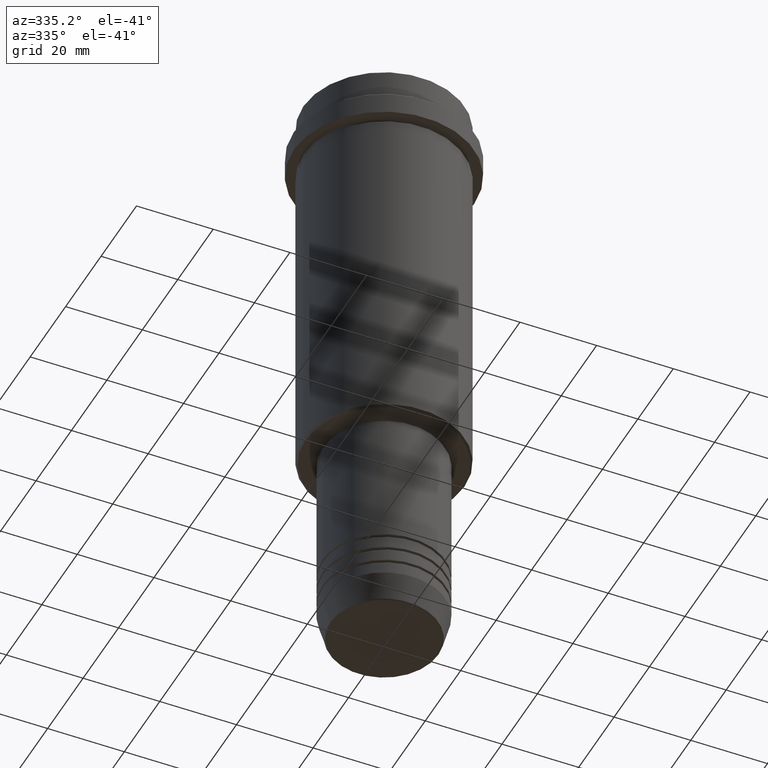
[diagram: clean part render]
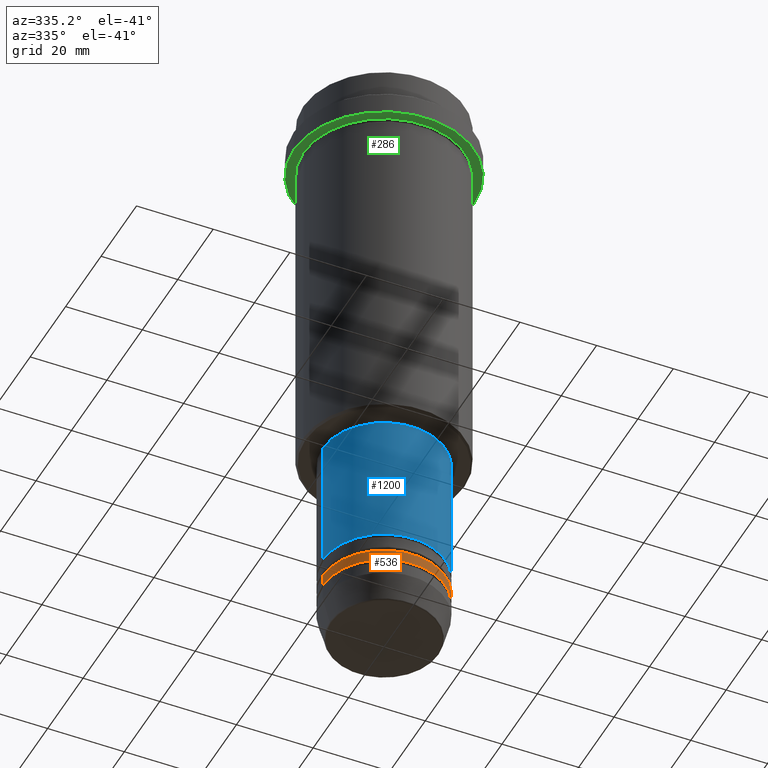
[diagram: same view with three faces highlighted in distinct colors, each labeled with its STEP entity id]
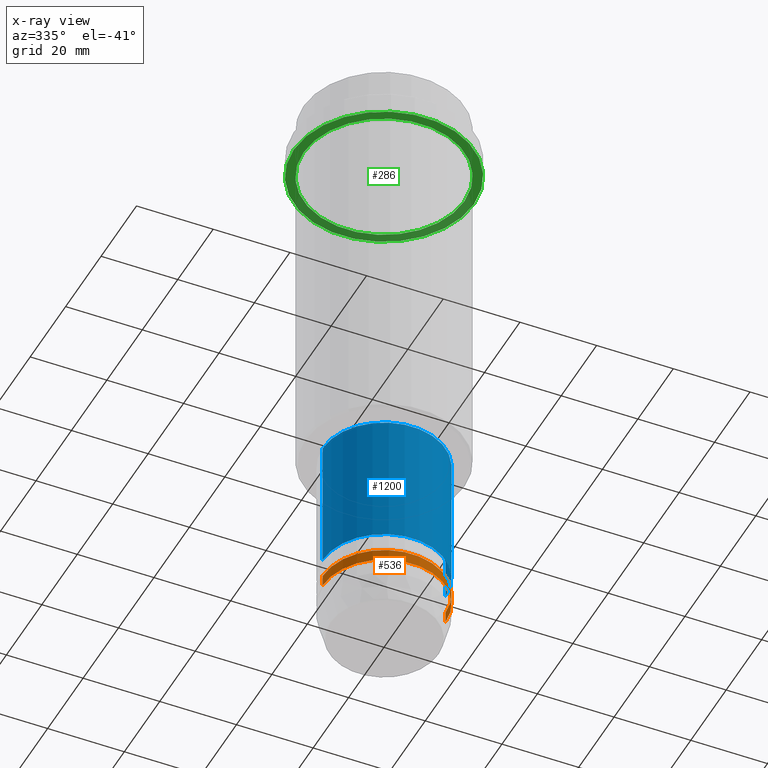
[diagram: x-ray of the same camera — body ghosted, the three highlighted faces saturated]
A machine part, auxiliary view with three faces highlighted in distinct colors.
The next image is the same camera in x-ray (body ghosted, the three faces saturated) — at least one of them is partly hidden behind the body in this view.
Their STEP definitions:

[orange] entity #536 — the highlighted cylindrical surface (partial cylindrical patch) has radius 16 mm, axis along (-0, -0, 1).
#101 = DIRECTION ( 'NONE',  ( 1.000000000000000000, 0.000000000000000000, 0.000000000000000000 ) ) ;
#126 = EDGE_LOOP ( 'NONE', ( #665, #1189, #1345, #129 ) ) ;
#129 = ORIENTED_EDGE ( 'NONE', *, *, #915, .F. ) ;
#140 = VECTOR ( 'NONE', #736, 1000.000000000000000 ) ;
#145 = EDGE_CURVE ( 'NONE', #201, #1226, #294, .T. ) ;
#201 = VERTEX_POINT ( 'NONE', #704 ) ;
#213 = CARTESIAN_POINT ( 'NONE',  ( -16.00000000000000000, 1.959434878635765131E-15, 0.000000000000000000 ) ) ;
#219 = FACE_OUTER_BOUND ( 'NONE', #126, .T. ) ;
#283 = CIRCLE ( 'NONE', #504, 16.00000000000000000 ) ;
#294 = LINE ( 'NONE', #1292, #140 ) ;
#321 = VERTEX_POINT ( 'NONE', #762 ) ;
#336 = DIRECTION ( 'NONE',  ( -0.000000000000000000, -0.000000000000000000, 1.000000000000000000 ) ) ;
#386 = CARTESIAN_POINT ( 'NONE',  ( 0.000000000000000000, 0.000000000000000000, -145.9999999999999147 ) ) ;
#396 = VECTOR ( 'NONE', #754, 1000.000000000000000 ) ;
#397 = DIRECTION ( 'NONE',  ( 1.000000000000000000, 0.000000000000000000, 0.000000000000000000 ) ) ;
#451 = CARTESIAN_POINT ( 'NONE',  ( 16.00000000000000000, 0.000000000000000000, -145.9999999999999147 ) ) ;
#479 = AXIS2_PLACEMENT_3D ( 'NONE', #386, #927, #397 ) ;
#492 = DIRECTION ( 'NONE',  ( -0.000000000000000000, -0.000000000000000000, 1.000000000000000000 ) ) ;
#504 = AXIS2_PLACEMENT_3D ( 'NONE', #832, #492, #920 ) ;
#536 = ADVANCED_FACE ( 'NONE', ( #219 ), #854, .T. ) ;
#665 = ORIENTED_EDGE ( 'NONE', *, *, #1106, .F. ) ;
#704 = CARTESIAN_POINT ( 'NONE',  ( 16.00000000000000000, 0.000000000000000000, -148.9999999999999147 ) ) ;
#716 = CARTESIAN_POINT ( 'NONE',  ( -16.00000000000000000, 1.959434878635765131E-15, -145.9999999999999147 ) ) ;
#736 = DIRECTION ( 'NONE',  ( -0.000000000000000000, -0.000000000000000000, 1.000000000000000000 ) ) ;
#747 = LINE ( 'NONE', #213, #396 ) ;
#754 = DIRECTION ( 'NONE',  ( -0.000000000000000000, -0.000000000000000000, 1.000000000000000000 ) ) ;
#762 = CARTESIAN_POINT ( 'NONE',  ( -16.00000000000000000, 1.959434878635765131E-15, -148.9999999999999147 ) ) ;
#832 = CARTESIAN_POINT ( 'NONE',  ( 0.000000000000000000, 0.000000000000000000, -148.9999999999999147 ) ) ;
#854 = CYLINDRICAL_SURFACE ( 'NONE', #1402, 16.00000000000000000 ) ;
#868 = CARTESIAN_POINT ( 'NONE',  ( 0.000000000000000000, 0.000000000000000000, 0.000000000000000000 ) ) ;
#905 = VERTEX_POINT ( 'NONE', #716 ) ;
#915 = EDGE_CURVE ( 'NONE', #905, #1226, #1102, .T. ) ;
#920 = DIRECTION ( 'NONE',  ( 1.000000000000000000, 0.000000000000000000, 0.000000000000000000 ) ) ;
#927 = DIRECTION ( 'NONE',  ( -0.000000000000000000, -0.000000000000000000, 1.000000000000000000 ) ) ;
#947 = EDGE_CURVE ( 'NONE', #321, #201, #283, .T. ) ;
#1102 = CIRCLE ( 'NONE', #479, 16.00000000000000000 ) ;
#1106 = EDGE_CURVE ( 'NONE', #321, #905, #747, .T. ) ;
#1189 = ORIENTED_EDGE ( 'NONE', *, *, #947, .T. ) ;
#1226 = VERTEX_POINT ( 'NONE', #451 ) ;
#1292 = CARTESIAN_POINT ( 'NONE',  ( 16.00000000000000000, 0.000000000000000000, 0.000000000000000000 ) ) ;
#1345 = ORIENTED_EDGE ( 'NONE', *, *, #145, .T. ) ;
#1402 = AXIS2_PLACEMENT_3D ( 'NONE', #868, #336, #101 ) ;

[blue] entity #1200 — the highlighted cylindrical surface (partial cylindrical patch) has radius 16 mm, axis along (-0, -0, 1).
#4 = VECTOR ( 'NONE', #247, 1000.000000000000000 ) ;
#71 = CARTESIAN_POINT ( 'NONE',  ( 0.000000000000000000, 0.000000000000000000, -106.0000000000000142 ) ) ;
#112 = VERTEX_POINT ( 'NONE', #1389 ) ;
#153 = CYLINDRICAL_SURFACE ( 'NONE', #749, 16.00000000000000000 ) ;
#179 = DIRECTION ( 'NONE',  ( -0.000000000000000000, -0.000000000000000000, 1.000000000000000000 ) ) ;
#229 = CARTESIAN_POINT ( 'NONE',  ( 16.00000000000000355, 0.000000000000000000, -106.0000000000000142 ) ) ;
#247 = DIRECTION ( 'NONE',  ( -0.000000000000000000, -0.000000000000000000, 1.000000000000000000 ) ) ;
#272 = LINE ( 'NONE', #1371, #967 ) ;
#390 = EDGE_LOOP ( 'NONE', ( #862, #770, #680, #1132 ) ) ;
#395 = CIRCLE ( 'NONE', #1201, 16.00000000000000355 ) ;
#477 = EDGE_CURVE ( 'NONE', #112, #893, #1016, .T. ) ;
#487 = CARTESIAN_POINT ( 'NONE',  ( 0.000000000000000000, 0.000000000000000000, -140.9999999999999147 ) ) ;
#537 = VERTEX_POINT ( 'NONE', #629 ) ;
#540 = AXIS2_PLACEMENT_3D ( 'NONE', #487, #179, #826 ) ;
#582 = CARTESIAN_POINT ( 'NONE',  ( 0.000000000000000000, 0.000000000000000000, 0.000000000000000000 ) ) ;
#584 = LINE ( 'NONE', #874, #4 ) ;
#589 = DIRECTION ( 'NONE',  ( 1.000000000000000000, 0.000000000000000000, 0.000000000000000000 ) ) ;
#600 = VERTEX_POINT ( 'NONE', #229 ) ;
#629 = CARTESIAN_POINT ( 'NONE',  ( -16.00000000000000355, 1.959434878635765526E-15, -106.0000000000000142 ) ) ;
#663 = FACE_OUTER_BOUND ( 'NONE', #390, .T. ) ;
#680 = ORIENTED_EDGE ( 'NONE', *, *, #742, .T. ) ;
#700 = DIRECTION ( 'NONE',  ( -0.000000000000000000, -0.000000000000000000, 1.000000000000000000 ) ) ;
#721 = CARTESIAN_POINT ( 'NONE',  ( 16.00000000000000000, 0.000000000000000000, -140.9999999999999147 ) ) ;
#742 = EDGE_CURVE ( 'NONE', #893, #600, #584, .T. ) ;
#749 = AXIS2_PLACEMENT_3D ( 'NONE', #582, #1030, #1103 ) ;
#770 = ORIENTED_EDGE ( 'NONE', *, *, #477, .T. ) ;
#826 = DIRECTION ( 'NONE',  ( 1.000000000000000000, 0.000000000000000000, 0.000000000000000000 ) ) ;
#862 = ORIENTED_EDGE ( 'NONE', *, *, #974, .F. ) ;
#874 = CARTESIAN_POINT ( 'NONE',  ( 16.00000000000000000, 0.000000000000000000, 0.000000000000000000 ) ) ;
#893 = VERTEX_POINT ( 'NONE', #721 ) ;
#937 = EDGE_CURVE ( 'NONE', #537, #600, #395, .T. ) ;
#967 = VECTOR ( 'NONE', #700, 1000.000000000000000 ) ;
#974 = EDGE_CURVE ( 'NONE', #112, #537, #272, .T. ) ;
#1016 = CIRCLE ( 'NONE', #540, 16.00000000000000000 ) ;
#1030 = DIRECTION ( 'NONE',  ( -0.000000000000000000, -0.000000000000000000, 1.000000000000000000 ) ) ;
#1103 = DIRECTION ( 'NONE',  ( 1.000000000000000000, 0.000000000000000000, 0.000000000000000000 ) ) ;
#1132 = ORIENTED_EDGE ( 'NONE', *, *, #937, .F. ) ;
#1200 = ADVANCED_FACE ( 'NONE', ( #663 ), #153, .T. ) ;
#1201 = AXIS2_PLACEMENT_3D ( 'NONE', #71, #1283, #589 ) ;
#1283 = DIRECTION ( 'NONE',  ( -0.000000000000000000, -0.000000000000000000, 1.000000000000000000 ) ) ;
#1371 = CARTESIAN_POINT ( 'NONE',  ( -16.00000000000000000, 1.959434878635765131E-15, 0.000000000000000000 ) ) ;
#1389 = CARTESIAN_POINT ( 'NONE',  ( -16.00000000000000000, 1.959434878635765131E-15, -140.9999999999999147 ) ) ;

[green] entity #286 — the highlighted planar face has unit normal (0, 0, -1).
#8 = DIRECTION ( 'NONE',  ( -0.000000000000000000, -0.000000000000000000, 1.000000000000000000 ) ) ;
#25 = EDGE_CURVE ( 'NONE', #449, #900, #790, .T. ) ;
#35 = EDGE_CURVE ( 'NONE', #157, #878, #656, .T. ) ;
#114 = CARTESIAN_POINT ( 'NONE',  ( 0.000000000000000000, 0.000000000000000000, -15.00000000000000178 ) ) ;
#147 = CARTESIAN_POINT ( 'NONE',  ( 0.000000000000000000, 0.000000000000000000, -15.00000000000000178 ) ) ;
#157 = VERTEX_POINT ( 'NONE', #1176 ) ;
#172 = ORIENTED_EDGE ( 'NONE', *, *, #35, .F. ) ;
#207 = ORIENTED_EDGE ( 'NONE', *, *, #25, .T. ) ;
#256 = DIRECTION ( 'NONE',  ( -1.000000000000000000, 0.000000000000000000, 0.000000000000000000 ) ) ;
#274 = FACE_BOUND ( 'NONE', #456, .T. ) ;
#277 = AXIS2_PLACEMENT_3D ( 'NONE', #114, #542, #885 ) ;
#279 = AXIS2_PLACEMENT_3D ( 'NONE', #755, #8, #1208 ) ;
#286 = ADVANCED_FACE ( 'NONE', ( #274, #701 ), #1154, .T. ) ;
#352 = DIRECTION ( 'NONE',  ( -1.000000000000000000, 0.000000000000000000, -0.000000000000000000 ) ) ;
#356 = DIRECTION ( 'NONE',  ( -0.000000000000000000, -0.000000000000000000, 1.000000000000000000 ) ) ;
#449 = VERTEX_POINT ( 'NONE', #852 ) ;
#456 = EDGE_LOOP ( 'NONE', ( #782, #207 ) ) ;
#499 = EDGE_LOOP ( 'NONE', ( #1093, #172 ) ) ;
#528 = EDGE_CURVE ( 'NONE', #878, #157, #1178, .T. ) ;
#542 = DIRECTION ( 'NONE',  ( -0.000000000000000000, -0.000000000000000000, 1.000000000000000000 ) ) ;
#575 = DIRECTION ( 'NONE',  ( -0.000000000000000000, -0.000000000000000000, 1.000000000000000000 ) ) ;
#656 = CIRCLE ( 'NONE', #761, 23.50000000000000355 ) ;
#681 = CIRCLE ( 'NONE', #1217, 20.99999999999999289 ) ;
#701 = FACE_OUTER_BOUND ( 'NONE', #499, .T. ) ;
#710 = CARTESIAN_POINT ( 'NONE',  ( -20.99999999999999289, 0.000000000000000000, -15.00000000000000178 ) ) ;
#717 = CARTESIAN_POINT ( 'NONE',  ( 0.000000000000000000, 23.50000000000000355, -15.00000000000000178 ) ) ;
#755 = CARTESIAN_POINT ( 'NONE',  ( 0.000000000000000000, 0.000000000000000000, -15.00000000000000000 ) ) ;
#761 = AXIS2_PLACEMENT_3D ( 'NONE', #891, #356, #781 ) ;
#781 = DIRECTION ( 'NONE',  ( 1.000000000000000000, 0.000000000000000000, 0.000000000000000000 ) ) ;
#782 = ORIENTED_EDGE ( 'NONE', *, *, #1173, .T. ) ;
#790 = CIRCLE ( 'NONE', #277, 20.99999999999999289 ) ;
#852 = CARTESIAN_POINT ( 'NONE',  ( 20.99999999999999289, 2.571758278209440872E-15, -15.00000000000000178 ) ) ;
#878 = VERTEX_POINT ( 'NONE', #1165 ) ;
#885 = DIRECTION ( 'NONE',  ( -1.000000000000000000, 0.000000000000000000, 0.000000000000000000 ) ) ;
#891 = CARTESIAN_POINT ( 'NONE',  ( 0.000000000000000000, 0.000000000000000000, -15.00000000000000000 ) ) ;
#900 = VERTEX_POINT ( 'NONE', #710 ) ;
#1039 = AXIS2_PLACEMENT_3D ( 'NONE', #717, #1133, #352 ) ;
#1093 = ORIENTED_EDGE ( 'NONE', *, *, #528, .F. ) ;
#1133 = DIRECTION ( 'NONE',  ( 0.000000000000000000, 0.000000000000000000, -1.000000000000000000 ) ) ;
#1154 = PLANE ( 'NONE',  #1039 ) ;
#1165 = CARTESIAN_POINT ( 'NONE',  ( 23.50000000000000355, 0.000000000000000000, -15.00000000000000000 ) ) ;
#1173 = EDGE_CURVE ( 'NONE', #900, #449, #681, .T. ) ;
#1176 = CARTESIAN_POINT ( 'NONE',  ( -23.50000000000000711, 2.877919977996281109E-15, -15.00000000000000000 ) ) ;
#1178 = CIRCLE ( 'NONE', #279, 23.50000000000000355 ) ;
#1208 = DIRECTION ( 'NONE',  ( 1.000000000000000000, 0.000000000000000000, 0.000000000000000000 ) ) ;
#1217 = AXIS2_PLACEMENT_3D ( 'NONE', #147, #575, #256 ) ;